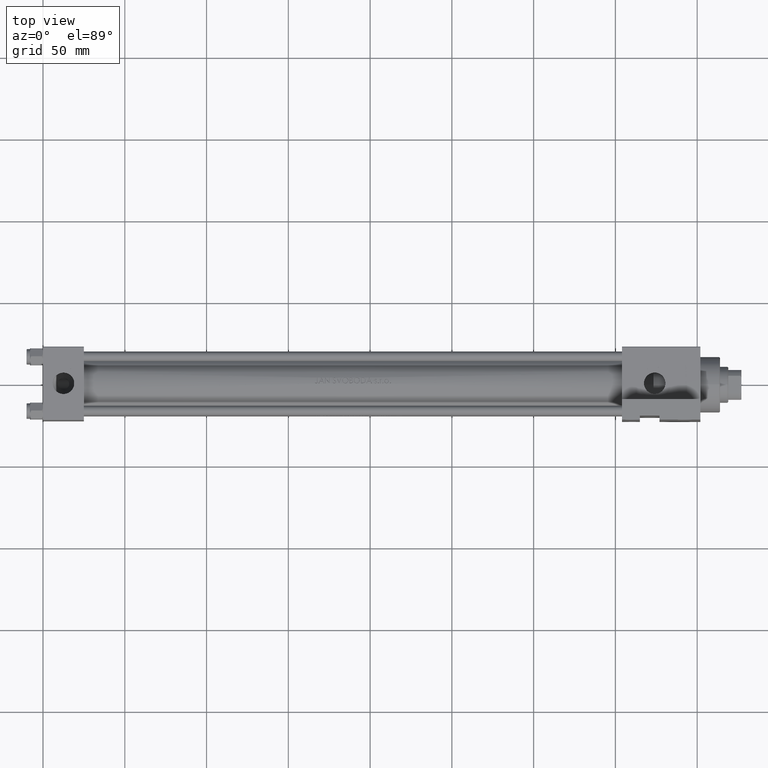
[diagram: clean part render]
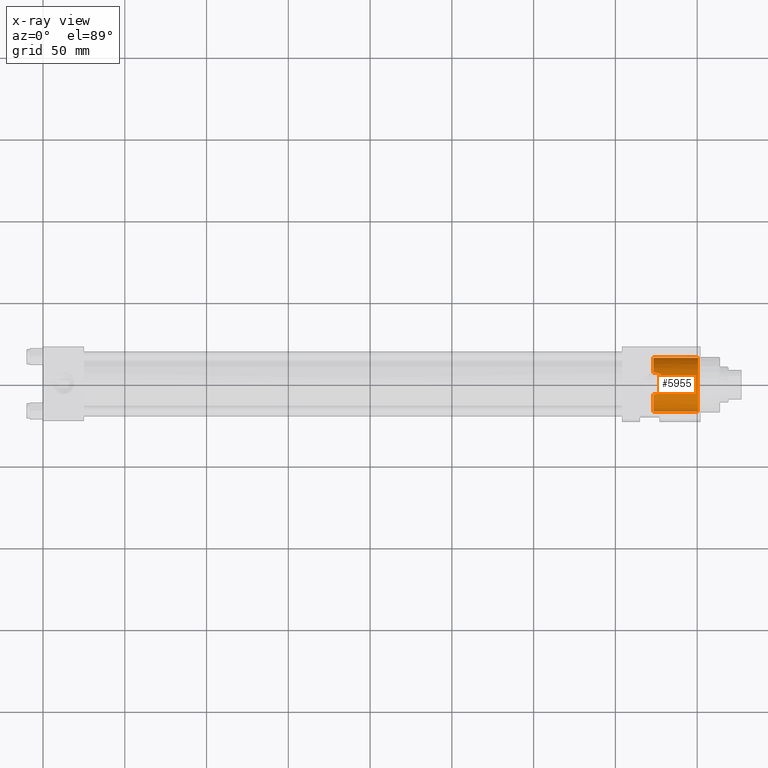
[diagram: x-ray — body ghosted, one internal face saturated and labeled with its STEP entity id]
A machine part, top view, then the same camera in x-ray: the body is ghosted and one INTERNAL B-rep face — a face not visible from any outside direction — is saturated and labeled: STEP entity #5955.
In plain terms, the highlighted cylindrical surface (edge-blend (fillet) strip) has radius 16.5 mm, axis along (1, 0, 0).
Its self-contained STEP definition (entity closure, byte-faithful):
#113 = CARTESIAN_POINT ( 'NONE',  ( 400.5000000000000000, 0.000000000000000000, -16.99999999999999645 ) ) ;
#190 = CARTESIAN_POINT ( 'NONE',  ( 378.3574914770861710, -15.89197804239858947, -4.948973207531823348 ) ) ;
#352 = VERTEX_POINT ( 'NONE', #17530 ) ;
#666 = CARTESIAN_POINT ( 'NONE',  ( 380.5326949847450919, -16.44614851479039075, 0.8985633279690309339 ) ) ;
#779 = ORIENTED_EDGE ( 'NONE', *, *, #25584, .T. ) ;
#1915 = CARTESIAN_POINT ( 'NONE',  ( 374.0000000000000568, -14.90381159301204939, 6.579999999999992077 ) ) ;
#2378 = CARTESIAN_POINT ( 'NONE',  ( 373.7674089415833691, -14.90381159301204761, 6.579999999999984972 ) ) ;
#2410 = CARTESIAN_POINT ( 'NONE',  ( 373.3000000000000114, -15.35370509061272415, -6.542660009506818142 ) ) ;
#3121 = AXIS2_PLACEMENT_3D ( 'NONE', #42240, #41773, #41298 ) ;
#3576 = CARTESIAN_POINT ( 'NONE',  ( 374.4341129154129817, -15.33895693976615249, -6.579999999999984084 ) ) ;
#3697 = ORIENTED_EDGE ( 'NONE', *, *, #5244, .T. ) ;
#3809 = CARTESIAN_POINT ( 'NONE',  ( 378.4913386763622611, -15.62185234982736226, 4.813414449261110839 ) ) ;
#4237 = CYLINDRICAL_SURFACE ( 'NONE', #15636, 16.50000000000000000 ) ;
#4288 = CARTESIAN_POINT ( 'NONE',  ( 378.9566738476336809, -16.04954766180734183, -4.332917015252664150 ) ) ;
#4520 = CARTESIAN_POINT ( 'NONE',  ( 378.3341328556404051, -15.57266778701109189, 4.955512184649332852 ) ) ;
#5244 = EDGE_CURVE ( 'NONE', #37798, #45105, #44119, .T. ) ;
#5572 = CARTESIAN_POINT ( 'NONE',  ( 400.5000000000000000, 2.020667218593133100E-15, 16.00000000000000355 ) ) ;
#5716 = B_SPLINE_CURVE_WITH_KNOTS ( 'NONE', 3,
 ( #32679, #17719, #29295, #7333 ),
 .UNSPECIFIED., .F., .F.,
 ( 4, 4 ),
 ( 0.000000000000000000, 0.0006965685122027478289 ),
 .UNSPECIFIED. ) ;
#5955 = ADVANCED_FACE ( 'NONE', ( #37284 ), #4237, .F. ) ;
#6565 = LINE ( 'NONE', #24678, #23940 ) ;
#6976 = CIRCLE ( 'NONE', #3121, 16.50000000000000000 ) ;
#7333 = CARTESIAN_POINT ( 'NONE',  ( 374.0000000000000568, -15.33895693976615071, -6.579999999999984972 ) ) ;
#7427 = CARTESIAN_POINT ( 'NONE',  ( 377.3079685215801646, -15.66216623791877716, -5.692129803036766411 ) ) ;
#8139 = CARTESIAN_POINT ( 'NONE',  ( 380.1646761068265619, -16.40157007731482963, -2.310968459578441880 ) ) ;
#8371 = CARTESIAN_POINT ( 'NONE',  ( 377.8315046802826487, -15.42728545299678800, 5.353628400115717056 ) ) ;
#8587 = DIRECTION ( 'NONE',  ( 1.000000000000000000, -0.000000000000000000, -0.000000000000000000 ) ) ;
#8759 = AXIS2_PLACEMENT_3D ( 'NONE', #26686, #46177, #45947 ) ;
#9040 = DIRECTION ( 'NONE',  ( 0.000000000000000000, 0.000000000000000000, -1.000000000000000000 ) ) ;
#11047 = CARTESIAN_POINT ( 'NONE',  ( 380.3629836567162101, -16.45835575231208381, -1.689905106513905020 ) ) ;
#11286 = CARTESIAN_POINT ( 'NONE',  ( 379.8954531384125630, -16.13952493269047750, 2.953520058509849999 ) ) ;
#11523 = CARTESIAN_POINT ( 'NONE',  ( 380.4150129121088639, -16.47223324460452432, -1.480115068709078052 ) ) ;
#11639 = CARTESIAN_POINT ( 'NONE',  ( 373.5326410810857283, -14.90974480628698196, 6.567550307416747835 ) ) ;
#11770 = CARTESIAN_POINT ( 'NONE',  ( 380.4983281949436105, -16.49200114892362379, -1.055870233478325204 ) ) ;
#12006 = CARTESIAN_POINT ( 'NONE',  ( 380.5296148987571314, -16.49789263875700129, -0.8414156283381248880 ) ) ;
#14676 = CARTESIAN_POINT ( 'NONE',  ( 380.2380364384483755, -16.42309107580809524, -2.104813929365229708 ) ) ;
#14766 = B_SPLINE_CURVE_WITH_KNOTS ( 'NONE', 3,
 ( #1915, #2378, #11639, #38821 ),
 .UNSPECIFIED., .F., .F.,
 ( 4, 4 ),
 ( 0.02150003536765269369, 0.02219197285507958084 ),
 .UNSPECIFIED. ) ;
#14923 = CARTESIAN_POINT ( 'NONE',  ( 376.1384851323426233, -15.47127985552786811, -6.237636073092440725 ) ) ;
#15164 = CARTESIAN_POINT ( 'NONE',  ( 375.7143978928018555, -15.00324899027946124, 6.367404972463830859 ) ) ;
#15398 = CARTESIAN_POINT ( 'NONE',  ( 379.6923054650132485, -16.05392064770339289, 3.328442527785250515 ) ) ;
#15636 = AXIS2_PLACEMENT_3D ( 'NONE', #18970, #37751, #9040 ) ;
#15641 = CARTESIAN_POINT ( 'NONE',  ( 378.0284776740527946, -15.81237954518120681, -5.220358165594013222 ) ) ;
#16908 = ORIENTED_EDGE ( 'NONE', *, *, #45526, .F. ) ;
#17026 = EDGE_CURVE ( 'NONE', #352, #37625, #43437, .T. ) ;
#17530 = CARTESIAN_POINT ( 'NONE',  ( 373.3000000000000114, 2.020667218593133100E-15, 16.00000000000000355 ) ) ;
#17695 = DIRECTION ( 'NONE',  ( 0.000000000000000000, 0.000000000000000000, 1.000000000000000000 ) ) ;
#17719 = CARTESIAN_POINT ( 'NONE',  ( 373.5341069302494930, -15.34384745132401839, -6.567707138799266708 ) ) ;
#18304 = CARTESIAN_POINT ( 'NONE',  ( 376.9277837456259022, -15.59286003707434531, -5.896700753237607451 ) ) ;
#18824 = CARTESIAN_POINT ( 'NONE',  ( 373.3000000000000114, 0.000000000000000000, -16.99999999999999645 ) ) ;
#18970 = CARTESIAN_POINT ( 'NONE',  ( 373.3000000000000114, 0.000000000000000000, -0.4999999999999967804 ) ) ;
#19022 = CARTESIAN_POINT ( 'NONE',  ( 376.1352023701870166, -15.06229937542716790, 6.238648670809845420 ) ) ;
#20781 = ORIENTED_EDGE ( 'NONE', *, *, #23468, .T. ) ;
#21575 = ORIENTED_EDGE ( 'NONE', *, *, #17026, .F. ) ;
#22161 = CARTESIAN_POINT ( 'NONE',  ( 380.3588356637529841, -16.35197207035328759, 1.746060943800902265 ) ) ;
#22640 = CARTESIAN_POINT ( 'NONE',  ( 374.8656063113635923, -15.35602623177227777, -6.537463815344770168 ) ) ;
#22875 = CARTESIAN_POINT ( 'NONE',  ( 380.5709677562897468, -16.50116693238018328, -0.4077177105366009413 ) ) ;
#23112 = CARTESIAN_POINT ( 'NONE',  ( 377.3001356602298415, -15.28950433861737501, 5.708499388656715468 ) ) ;
#23468 = EDGE_CURVE ( 'NONE', #42416, #26270, #5716, .T. ) ;
#23940 = VECTOR ( 'NONE', #35528, 1000.000000000000000 ) ;
#24258 = ORIENTED_EDGE ( 'NONE', *, *, #25450, .T. ) ;
#24456 = CARTESIAN_POINT ( 'NONE',  ( 373.3000000000000114, 0.000000000000000000, -16.99999999999999645 ) ) ;
#24654 = EDGE_CURVE ( 'NONE', #37961, #45105, #28306, .T. ) ;
#24678 = CARTESIAN_POINT ( 'NONE',  ( 373.3000000000000114, 2.020667218593133100E-15, 16.00000000000000355 ) ) ;
#25193 = DIRECTION ( 'NONE',  ( 1.000000000000000000, 0.000000000000000000, 0.000000000000000000 ) ) ;
#25450 = EDGE_CURVE ( 'NONE', #31179, #37625, #14766, .T. ) ;
#25584 = EDGE_CURVE ( 'NONE', #26270, #31179, #41803, .T. ) ;
#25789 = CARTESIAN_POINT ( 'NONE',  ( 375.7232862870478698, -15.42257739805874728, -6.365374442724276882 ) ) ;
#26259 = CARTESIAN_POINT ( 'NONE',  ( 374.8672262143391549, -14.92450725701554859, 6.536889544069371283 ) ) ;
#26270 = VERTEX_POINT ( 'NONE', #31415 ) ;
#26503 = CARTESIAN_POINT ( 'NONE',  ( 376.7335635805853826, -15.56042039305879854, -5.989176551187647135 ) ) ;
#26686 = CARTESIAN_POINT ( 'NONE',  ( 373.3000000000000114, 0.000000000000000000, -0.4999999999999967804 ) ) ;
#26739 = CARTESIAN_POINT ( 'NONE',  ( 378.8113393517018039, -16.01015148505542740, -4.493698987271225853 ) ) ;
#28303 = CARTESIAN_POINT ( 'NONE',  ( 373.3000000000000114, -14.92149255237201189, 6.542660009506819918 ) ) ;
#28306 = LINE ( 'NONE', #24456, #34352 ) ;
#29035 = CARTESIAN_POINT ( 'NONE',  ( 400.5000000000000000, 0.000000000000000000, -0.4999999999999967804 ) ) ;
#29295 = CARTESIAN_POINT ( 'NONE',  ( 373.7674315422764835, -15.33895693976615071, -6.579999999999984972 ) ) ;
#29393 = CARTESIAN_POINT ( 'NONE',  ( 380.5778417032764764, -16.47736198929498386, 0.4683372378626164401 ) ) ;
#31179 = VERTEX_POINT ( 'NONE', #33215 ) ;
#31415 = CARTESIAN_POINT ( 'NONE',  ( 374.0000000000000568, -15.33895693976615071, -6.579999999999984972 ) ) ;
#32455 = EDGE_LOOP ( 'NONE', ( #21575, #37540, #3697, #36269, #16908, #20781, #779, #24258 ) ) ;
#32679 = CARTESIAN_POINT ( 'NONE',  ( 373.3000000000000114, -15.35370509061272415, -6.542660009506818142 ) ) ;
#33007 = CARTESIAN_POINT ( 'NONE',  ( 376.9258909046373560, -15.20539478107088271, 5.909229121773023508 ) ) ;
#33215 = CARTESIAN_POINT ( 'NONE',  ( 374.0000000000000568, -14.90381159301204939, 6.579999999999992077 ) ) ;
#33242 = CARTESIAN_POINT ( 'NONE',  ( 377.4940309364367295, -15.69908748261051734, -5.579806515649023524 ) ) ;
#33492 = CARTESIAN_POINT ( 'NONE',  ( 379.3567953874912178, -16.16208858154858774, -3.827128066706335208 ) ) ;
#33722 = CARTESIAN_POINT ( 'NONE',  ( 379.7127167590448380, -16.26592437390081614, -3.293073257702346712 ) ) ;
#34352 = VECTOR ( 'NONE', #8587, 1000.000000000000000 ) ;
#35528 = DIRECTION ( 'NONE',  ( 1.000000000000000000, -0.000000000000000000, -0.000000000000000000 ) ) ;
#36269 = ORIENTED_EDGE ( 'NONE', *, *, #24654, .F. ) ;
#36858 = CARTESIAN_POINT ( 'NONE',  ( 374.0000000000000568, -14.90381159301204939, 6.579999999999992077 ) ) ;
#37284 = FACE_OUTER_BOUND ( 'NONE', #32455, .T. ) ;
#37540 = ORIENTED_EDGE ( 'NONE', *, *, #37647, .T. ) ;
#37568 = CARTESIAN_POINT ( 'NONE',  ( 379.2113291612782859, -15.86733303061777356, 4.040163306179455738 ) ) ;
#37625 = VERTEX_POINT ( 'NONE', #28303 ) ;
#37647 = EDGE_CURVE ( 'NONE', #352, #37798, #6565, .T. ) ;
#37751 = DIRECTION ( 'NONE',  ( 1.000000000000000000, -0.000000000000000000, -0.000000000000000000 ) ) ;
#37798 = VERTEX_POINT ( 'NONE', #5572 ) ;
#37961 = VERTEX_POINT ( 'NONE', #18824 ) ;
#38821 = CARTESIAN_POINT ( 'NONE',  ( 373.3000000000000114, -14.92149255237201189, 6.542660009506819918 ) ) ;
#40479 = CARTESIAN_POINT ( 'NONE',  ( 380.2284342886651984, -16.28834046731282825, 2.164775913349327841 ) ) ;
#40948 = CARTESIAN_POINT ( 'NONE',  ( 374.4370608312320314, -14.90381159301205294, 6.579999999999992966 ) ) ;
#41188 = CARTESIAN_POINT ( 'NONE',  ( 379.2294062955909340, -16.12552788553619010, -3.999511881281994086 ) ) ;
#41298 = DIRECTION ( 'NONE',  ( 0.000000000000000000, 0.000000000000000000, -1.000000000000000000 ) ) ;
#41426 = CARTESIAN_POINT ( 'NONE',  ( 378.0044194477454766, -15.47541940897810875, 5.225555808626266341 ) ) ;
#41773 = DIRECTION ( 'NONE',  ( 1.000000000000000000, 0.000000000000000000, 0.000000000000000000 ) ) ;
#41803 = B_SPLINE_CURVE_WITH_KNOTS ( 'NONE', 3,
 ( #44337, #3576, #22640, #25789, #14923, #26503, #18304, #7427, #33242, #15641, #190, #26739, #4288, #41188, #33492, #33722, #44567, #8139, #14676, #11047, #11523, #11770, #12006, #22875, #45049, #29393, #666, #22161, #40479, #11286, #15398, #37568, #44092, #3809, #4520, #41426, #8371, #23112, #33007, #19022, #15164, #26259, #40948, #36858 ),
 .UNSPECIFIED., .F., .F.,
 ( 4, 2, 2, 2, 2, 2, 2, 2, 2, 2, 2, 2, 2, 2, 2, 2, 2, 2, 2, 2, 2, 4 ),
 ( 0.0006965685122027478289, 0.001996785190668206970, 0.003297001869133666004, 0.003947110208366471848, 0.004597218547599277692, 0.005897435226064888514, 0.006547543565297690889, 0.007197651904530492396, 0.008497868582996188219, 0.009147976922229036564, 0.009798085261461884909, 0.01044819360069473325, 0.01109830193992758160, 0.01239851861839328002, 0.01369873529685897498, 0.01499895197532467341, 0.01629916865379036836, 0.01694927699302315946, 0.01759938533225594709, 0.01889960201072153276, 0.02019981868918711149, 0.02150003536765269369 ),
 .UNSPECIFIED. ) ;
#41817 = AXIS2_PLACEMENT_3D ( 'NONE', #29035, #25193, #17695 ) ;
#42240 = CARTESIAN_POINT ( 'NONE',  ( 373.3000000000000114, 0.000000000000000000, -0.4999999999999967804 ) ) ;
#42416 = VERTEX_POINT ( 'NONE', #2410 ) ;
#43437 = CIRCLE ( 'NONE', #8759, 16.50000000000000000 ) ;
#44092 = CARTESIAN_POINT ( 'NONE',  ( 378.9408583155630481, -15.76925504840587244, 4.366124845913799568 ) ) ;
#44119 = CIRCLE ( 'NONE', #41817, 16.50000000000000000 ) ;
#44337 = CARTESIAN_POINT ( 'NONE',  ( 374.0000000000000568, -15.33895693976615071, -6.579999999999984972 ) ) ;
#44567 = CARTESIAN_POINT ( 'NONE',  ( 379.9152909999797316, -16.32739268020747403, -2.914679961596269298 ) ) ;
#45049 = CARTESIAN_POINT ( 'NONE',  ( 380.5809669525390859, -16.49848120805964058, -0.1871076695943675872 ) ) ;
#45105 = VERTEX_POINT ( 'NONE', #113 ) ;
#45526 = EDGE_CURVE ( 'NONE', #42416, #37961, #6976, .T. ) ;
#45947 = DIRECTION ( 'NONE',  ( 0.000000000000000000, 0.000000000000000000, -1.000000000000000000 ) ) ;
#46177 = DIRECTION ( 'NONE',  ( 1.000000000000000000, 0.000000000000000000, 0.000000000000000000 ) ) ;